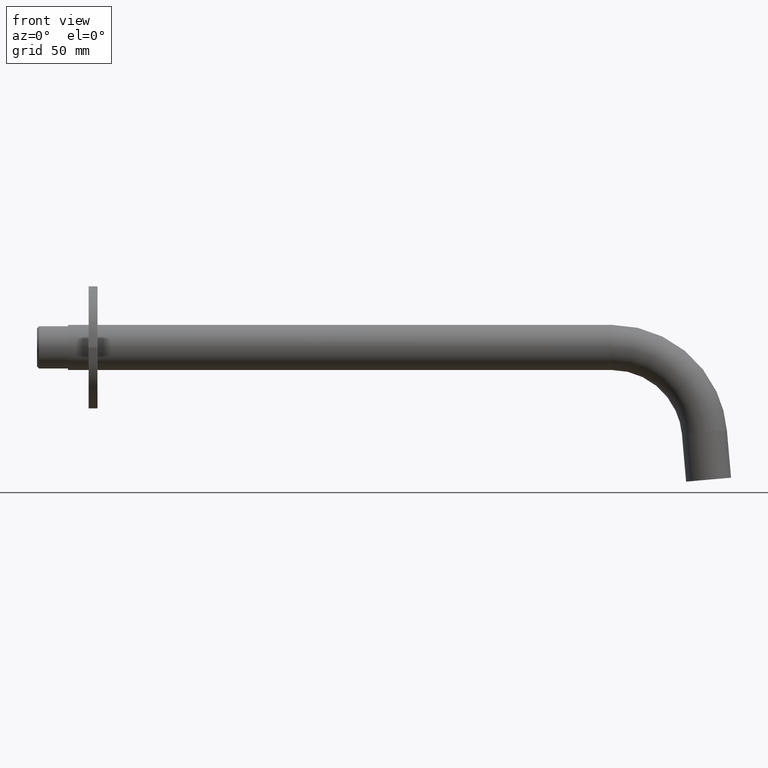
[diagram: clean part render]
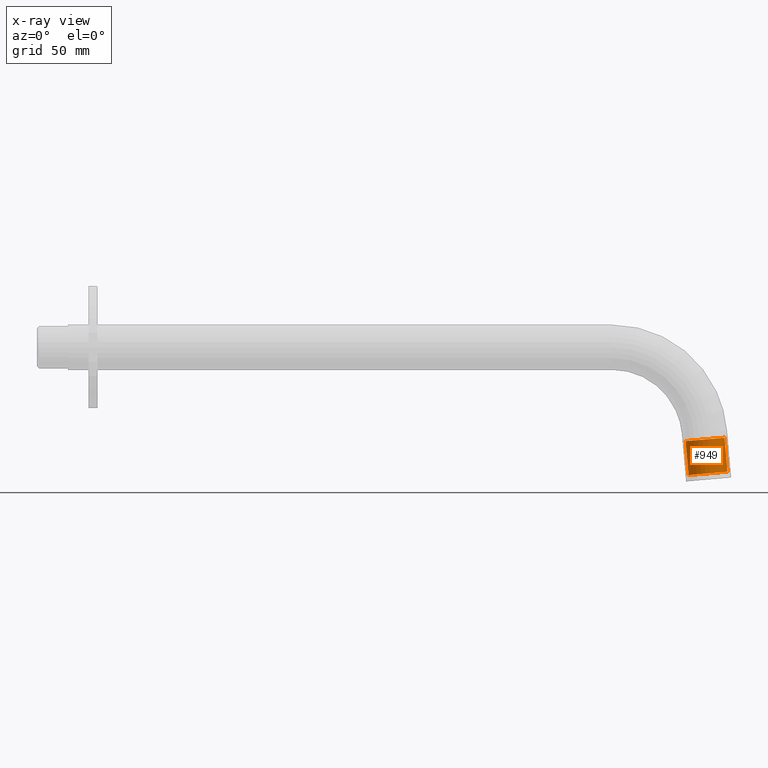
[diagram: x-ray — body ghosted, one internal face saturated and labeled with its STEP entity id]
A machine part, front view, then the same camera in x-ray: the body is ghosted and one INTERNAL B-rep face — a face not visible from any outside direction — is saturated and labeled: STEP entity #949.
In plain terms, the highlighted cylindrical surface (bore or boss wall) has radius 9.45 mm, axis along (-0.0872, 0, 0.9962).
Its self-contained STEP definition (entity closure, byte-faithful):
#169=CYLINDRICAL_SURFACE('',#1083,9.45000000000027);
#240=VERTEX_POINT('',#1296);
#256=VERTEX_POINT('',#1345);
#303=CIRCLE('',#1049,9.45000000000027);
#319=CIRCLE('',#1082,9.45000000000027);
#408=EDGE_CURVE('',#240,#240,#303,.T.);
#424=EDGE_CURVE('',#256,#256,#319,.T.);
#633=ORIENTED_EDGE('',*,*,#408,.F.);
#634=ORIENTED_EDGE('',*,*,#424,.T.);
#755=EDGE_LOOP('',(#633));
#756=EDGE_LOOP('',(#634));
#877=FACE_BOUND('',#755,.T.);
#878=FACE_BOUND('',#756,.T.);
#949=ADVANCED_FACE('',(#877,#878),#169,.T.);
#1049=AXIS2_PLACEMENT_3D('',#1295,#1556,#1557);
#1082=AXIS2_PLACEMENT_3D('',#1344,#1611,#1612);
#1083=AXIS2_PLACEMENT_3D('',#1346,#1613,#1614);
#1295=CARTESIAN_POINT('',(209.574288576923,-15.2,0.969962949599237));
#1296=CARTESIAN_POINT('',(200.160248679955,-15.2,0.146341180633842));
#1344=CARTESIAN_POINT('',(211.012358332259,-15.2,-15.4672495689146));
#1345=CARTESIAN_POINT('',(201.598318435292,-15.2,-16.29087133788));
#1346=CARTESIAN_POINT('',(210.293323454591,-15.2,-7.24864330965769));
#1556=DIRECTION('',(-0.0871557427476582,0.,0.996194698091746));
#1557=DIRECTION('',(-9.41403989696727,0.,-0.823621768965394));
#1611=DIRECTION('',(-0.0871557427476582,0.,0.996194698091746));
#1612=DIRECTION('',(-9.41403989696727,0.,-0.823621768965394));
#1613=DIRECTION('',(-0.0871557427476582,0.,0.996194698091746));
#1614=DIRECTION('',(-9.41403989696727,0.,-0.823621768965394));